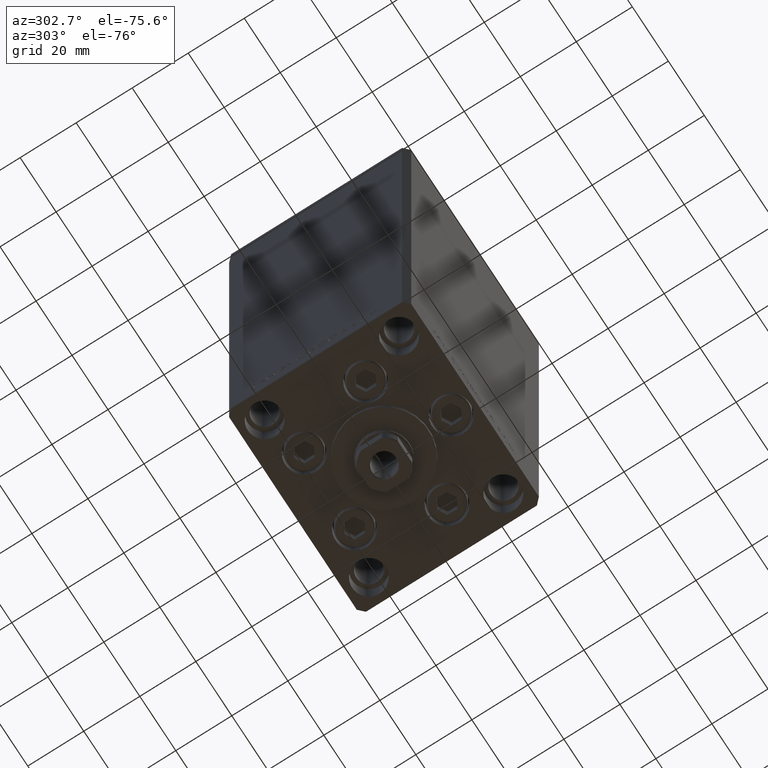
[diagram: clean part render]
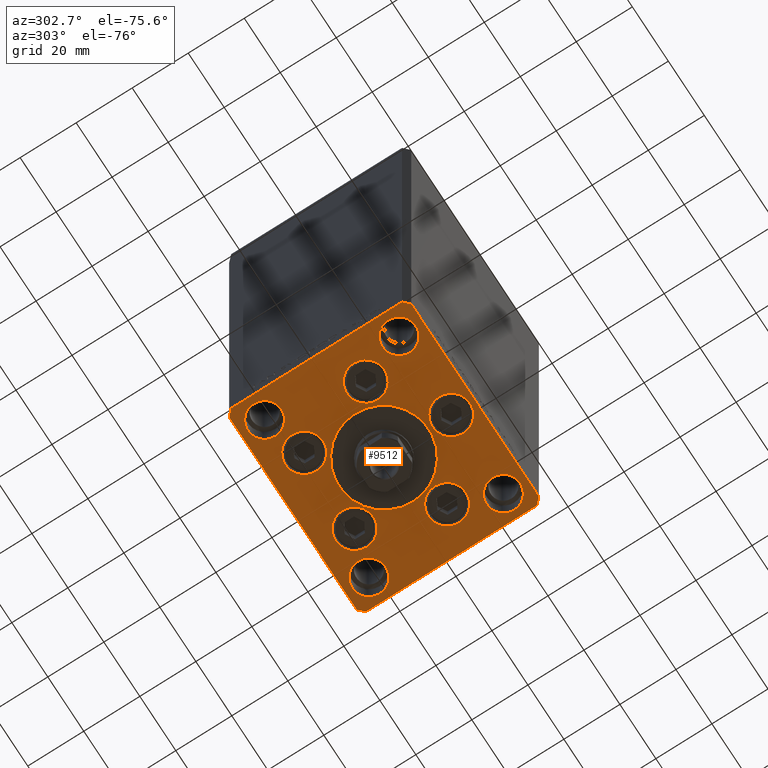
[diagram: same view with one face highlighted and labeled with its STEP entity id]
A machine part, auxiliary view. The second image highlights one B-rep face of the part: STEP entity #9512.
In plain terms, the highlighted planar face has unit normal (0, 0, -1).
Its self-contained STEP definition (entity closure, byte-faithful):
#71 = AXIS2_PLACEMENT_3D ( 'NONE', #30187, #732, #26215 ) ;
#279 = CIRCLE ( 'NONE', #18454, 6.000000000000001776 ) ;
#639 = EDGE_CURVE ( 'NONE', #46200, #8370, #29818, .T. ) ;
#732 = DIRECTION ( 'NONE',  ( 0.000000000000000000, 0.000000000000000000, 1.000000000000000000 ) ) ;
#765 = DIRECTION ( 'NONE',  ( 0.000000000000000000, 0.000000000000000000, 1.000000000000000000 ) ) ;
#799 = CARTESIAN_POINT ( 'NONE',  ( 35.00000000000000000, 24.00000000000000355, 0.000000000000000000 ) ) ;
#1046 = CARTESIAN_POINT ( 'NONE',  ( 35.50000000000001421, -32.49999999999992184, 0.000000000000000000 ) ) ;
#1102 = DIRECTION ( 'NONE',  ( 1.000000000000000000, 0.000000000000000000, 0.000000000000000000 ) ) ;
#1129 = DIRECTION ( 'NONE',  ( -1.000000000000000000, -1.954618001100627573E-16, 0.000000000000000000 ) ) ;
#1557 = DIRECTION ( 'NONE',  ( 1.000000000000000000, 0.000000000000000000, 0.000000000000000000 ) ) ;
#1823 = ORIENTED_EDGE ( 'NONE', *, *, #6134, .F. ) ;
#2084 = DIRECTION ( 'NONE',  ( 1.000000000000000000, 0.000000000000000000, 0.000000000000000000 ) ) ;
#2264 = CARTESIAN_POINT ( 'NONE',  ( -37.50000000000000000, -30.50000000000004263, 0.000000000000000000 ) ) ;
#2553 = VERTEX_POINT ( 'NONE', #21101 ) ;
#2595 = CIRCLE ( 'NONE', #48417, 5.999999999999998224 ) ;
#2602 = DIRECTION ( 'NONE',  ( 2.275047181608926165E-16, -1.000000000000000000, 0.000000000000000000 ) ) ;
#2688 = VERTEX_POINT ( 'NONE', #41387 ) ;
#3033 = DIRECTION ( 'NONE',  ( 0.000000000000000000, 0.000000000000000000, 1.000000000000000000 ) ) ;
#3148 = EDGE_CURVE ( 'NONE', #8370, #46200, #33835, .T. ) ;
#3176 = DIRECTION ( 'NONE',  ( 0.000000000000000000, 0.000000000000000000, 1.000000000000000000 ) ) ;
#3271 = CIRCLE ( 'NONE', #9581, 6.749999999999997335 ) ;
#3459 = CARTESIAN_POINT ( 'NONE',  ( 29.00000000000000000, 24.00000000000000355, 0.000000000000000000 ) ) ;
#3780 = ORIENTED_EDGE ( 'NONE', *, *, #41193, .T. ) ;
#3929 = CARTESIAN_POINT ( 'NONE',  ( 6.750000000001552536, -24.00000000000001066, 0.000000000000000000 ) ) ;
#4220 = EDGE_LOOP ( 'NONE', ( #14448, #14360 ) ) ;
#4254 = EDGE_CURVE ( 'NONE', #15693, #34137, #14562, .T. ) ;
#4322 = CARTESIAN_POINT ( 'NONE',  ( -13.99106857963324124, 19.50000000000000000, 0.000000000000000000 ) ) ;
#4583 = VERTEX_POINT ( 'NONE', #33778 ) ;
#4591 = VERTEX_POINT ( 'NONE', #37262 ) ;
#4633 = CIRCLE ( 'NONE', #29915, 6.000000000000001776 ) ;
#4725 = DIRECTION ( 'NONE',  ( 1.000000000000000000, 0.000000000000000000, 0.000000000000000000 ) ) ;
#5089 = LINE ( 'NONE', #11332, #16808 ) ;
#5221 = FACE_BOUND ( 'NONE', #17050, .T. ) ;
#5228 = EDGE_LOOP ( 'NONE', ( #41937, #17211 ) ) ;
#5265 = EDGE_CURVE ( 'NONE', #44348, #40256, #22695, .T. ) ;
#5304 = DIRECTION ( 'NONE',  ( 0.000000000000000000, 0.000000000000000000, 1.000000000000000000 ) ) ;
#5329 = DIRECTION ( 'NONE',  ( 1.000000000000000000, 0.000000000000000000, 0.000000000000000000 ) ) ;
#5424 = CARTESIAN_POINT ( 'NONE',  ( -37.50000000000000000, -30.50000000000004263, 0.000000000000000000 ) ) ;
#5470 = CIRCLE ( 'NONE', #26008, 6.000000000000001776 ) ;
#5471 = ORIENTED_EDGE ( 'NONE', *, *, #46162, .F. ) ;
#5570 = LINE ( 'NONE', #35761, #41992 ) ;
#5957 = FACE_BOUND ( 'NONE', #36043, .T. ) ;
#6121 = AXIS2_PLACEMENT_3D ( 'NONE', #3459, #45991, #26672 ) ;
#6134 = EDGE_CURVE ( 'NONE', #4583, #31196, #5470, .T. ) ;
#6322 = CARTESIAN_POINT ( 'NONE',  ( 20.74106857963323947, 19.50000000000000000, 0.000000000000000000 ) ) ;
#6435 = CARTESIAN_POINT ( 'NONE',  ( 37.50000000000000711, 30.50000000000001421, 0.000000000000000000 ) ) ;
#6536 = LINE ( 'NONE', #28060, #35041 ) ;
#6731 = ORIENTED_EDGE ( 'NONE', *, *, #22040, .T. ) ;
#6938 = VERTEX_POINT ( 'NONE', #27923 ) ;
#7111 = EDGE_CURVE ( 'NONE', #35011, #22943, #15531, .T. ) ;
#7166 = CIRCLE ( 'NONE', #16665, 16.00000000000000355 ) ;
#7625 = AXIS2_PLACEMENT_3D ( 'NONE', #17272, #32368, #28656 ) ;
#7696 = AXIS2_PLACEMENT_3D ( 'NONE', #27595, #47379, #5329 ) ;
#7773 = VERTEX_POINT ( 'NONE', #3929 ) ;
#7854 = DIRECTION ( 'NONE',  ( -0.7071067811865524577, -0.7071067811865426878, 0.000000000000000000 ) ) ;
#8370 = VERTEX_POINT ( 'NONE', #10685 ) ;
#8415 = DIRECTION ( 'NONE',  ( 0.000000000000000000, 0.000000000000000000, 1.000000000000000000 ) ) ;
#8934 = FACE_BOUND ( 'NONE', #5228, .T. ) ;
#9021 = EDGE_CURVE ( 'NONE', #40256, #44348, #34546, .T. ) ;
#9258 = AXIS2_PLACEMENT_3D ( 'NONE', #26567, #15446, #18658 ) ;
#9357 = ORIENTED_EDGE ( 'NONE', *, *, #4254, .T. ) ;
#9401 = CARTESIAN_POINT ( 'NONE',  ( 0.000000000000000000, -24.00000000000001066, 0.000000000000000000 ) ) ;
#9512 = ADVANCED_FACE ( 'NONE', ( #8934, #24010, #39116, #28466, #24746, #39855, #5221, #20291, #5957, #35404, #29196 ), #40093, .T. ) ;
#9552 = AXIS2_PLACEMENT_3D ( 'NONE', #31732, #25018, #1557 ) ;
#9581 = AXIS2_PLACEMENT_3D ( 'NONE', #23322, #22835, #41897 ) ;
#9940 = EDGE_CURVE ( 'NONE', #10461, #16845, #36580, .T. ) ;
#10086 = VERTEX_POINT ( 'NONE', #13249 ) ;
#10418 = EDGE_CURVE ( 'NONE', #16393, #23292, #21153, .T. ) ;
#10461 = VERTEX_POINT ( 'NONE', #1046 ) ;
#10518 = VERTEX_POINT ( 'NONE', #2264 ) ;
#10685 = CARTESIAN_POINT ( 'NONE',  ( -15.87741699796953476, -8.000000000000000000, 0.000000000000000000 ) ) ;
#11332 = CARTESIAN_POINT ( 'NONE',  ( 35.50000000000000000, 32.49999999999999289, 0.000000000000000000 ) ) ;
#11509 = EDGE_CURVE ( 'NONE', #16845, #4591, #45143, .T. ) ;
#12389 = DIRECTION ( 'NONE',  ( 1.000000000000000000, 0.000000000000000000, 0.000000000000000000 ) ) ;
#12547 = CARTESIAN_POINT ( 'NONE',  ( 29.37741699796954364, -8.000000000000000000, 0.000000000000000000 ) ) ;
#12996 = CARTESIAN_POINT ( 'NONE',  ( -29.00000000000000000, 24.00000000000000711, 0.000000000000000000 ) ) ;
#13249 = CARTESIAN_POINT ( 'NONE',  ( -6.750000000001552536, -24.00000000000001066, 0.000000000000000000 ) ) ;
#14360 = ORIENTED_EDGE ( 'NONE', *, *, #14470, .F. ) ;
#14448 = ORIENTED_EDGE ( 'NONE', *, *, #42306, .F. ) ;
#14470 = EDGE_CURVE ( 'NONE', #47429, #40371, #25136, .T. ) ;
#14562 = LINE ( 'NONE', #18503, #21079 ) ;
#15446 = DIRECTION ( 'NONE',  ( 0.000000000000000000, 0.000000000000000000, 1.000000000000000000 ) ) ;
#15531 = CIRCLE ( 'NONE', #7625, 6.750000000000009770 ) ;
#15693 = VERTEX_POINT ( 'NONE', #29471 ) ;
#16304 = DIRECTION ( 'NONE',  ( 0.7071067811865512365, -0.7071067811865439090, 0.000000000000000000 ) ) ;
#16364 = EDGE_CURVE ( 'NONE', #31196, #4583, #4633, .T. ) ;
#16393 = VERTEX_POINT ( 'NONE', #44628 ) ;
#16665 = AXIS2_PLACEMENT_3D ( 'NONE', #22200, #3176, #44503 ) ;
#16803 = DIRECTION ( 'NONE',  ( 1.000000000000000000, 0.000000000000000000, 0.000000000000000000 ) ) ;
#16808 = VECTOR ( 'NONE', #1129, 1000.000000000000000 ) ;
#16845 = VERTEX_POINT ( 'NONE', #22756 ) ;
#16857 = ORIENTED_EDGE ( 'NONE', *, *, #17922, .F. ) ;
#17050 = EDGE_LOOP ( 'NONE', ( #40456, #26487 ) ) ;
#17211 = ORIENTED_EDGE ( 'NONE', *, *, #10418, .F. ) ;
#17272 = CARTESIAN_POINT ( 'NONE',  ( 22.62741699796953299, -8.000000000000000000, 0.000000000000000000 ) ) ;
#17337 = ORIENTED_EDGE ( 'NONE', *, *, #26086, .F. ) ;
#17368 = CARTESIAN_POINT ( 'NONE',  ( -23.00000000000000000, -23.99999999999999645, 0.000000000000000000 ) ) ;
#17661 = CARTESIAN_POINT ( 'NONE',  ( -23.00000000000000000, 24.00000000000000711, 0.000000000000000000 ) ) ;
#17662 = CARTESIAN_POINT ( 'NONE',  ( 23.00000000000000711, -23.99999999999999645, 0.000000000000000000 ) ) ;
#17806 = CARTESIAN_POINT ( 'NONE',  ( 0.000000000000000000, 0.000000000000000000, 0.000000000000000000 ) ) ;
#17922 = EDGE_CURVE ( 'NONE', #37774, #41689, #21298, .T. ) ;
#18299 = DIRECTION ( 'NONE',  ( -0.000000000000000000, 0.000000000000000000, 1.000000000000000000 ) ) ;
#18403 = CARTESIAN_POINT ( 'NONE',  ( 15.87741699796952410, -8.000000000000000000, 0.000000000000000000 ) ) ;
#18436 = ORIENTED_EDGE ( 'NONE', *, *, #29182, .F. ) ;
#18454 = AXIS2_PLACEMENT_3D ( 'NONE', #26046, #41154, #25792 ) ;
#18503 = CARTESIAN_POINT ( 'NONE',  ( -35.50000000000000711, 32.49999999999997868, 0.000000000000000000 ) ) ;
#18658 = DIRECTION ( 'NONE',  ( 1.000000000000000000, 0.000000000000000000, 0.000000000000000000 ) ) ;
#18673 = ORIENTED_EDGE ( 'NONE', *, *, #44326, .F. ) ;
#18891 = DIRECTION ( 'NONE',  ( 0.000000000000000000, 1.000000000000000000, 0.000000000000000000 ) ) ;
#19017 = CIRCLE ( 'NONE', #71, 6.750000000001552536 ) ;
#19920 = EDGE_LOOP ( 'NONE', ( #24723, #39465, #45131, #33161, #3780, #38147, #9357, #6731 ) ) ;
#20291 = FACE_BOUND ( 'NONE', #33400, .T. ) ;
#20489 = VECTOR ( 'NONE', #37094, 1000.000000000000000 ) ;
#20501 = CARTESIAN_POINT ( 'NONE',  ( -22.62741699796953299, -8.000000000000000000, 0.000000000000000000 ) ) ;
#21066 = CARTESIAN_POINT ( 'NONE',  ( 23.00000000000000000, 24.00000000000000355, 0.000000000000000000 ) ) ;
#21079 = VECTOR ( 'NONE', #7854, 1000.000000000000000 ) ;
#21101 = CARTESIAN_POINT ( 'NONE',  ( 7.241068579633242130, 19.50000000000000000, 0.000000000000000000 ) ) ;
#21153 = CIRCLE ( 'NONE', #36985, 16.00000000000000355 ) ;
#21182 = EDGE_CURVE ( 'NONE', #10086, #7773, #19017, .T. ) ;
#21298 = CIRCLE ( 'NONE', #47367, 5.999999999999998224 ) ;
#21471 = EDGE_CURVE ( 'NONE', #23292, #16393, #7166, .T. ) ;
#22040 = EDGE_CURVE ( 'NONE', #34137, #10518, #5570, .T. ) ;
#22200 = CARTESIAN_POINT ( 'NONE',  ( 0.000000000000000000, -6.938893903907228378E-15, 0.000000000000000000 ) ) ;
#22595 = CARTESIAN_POINT ( 'NONE',  ( 37.50000000000000711, -30.49999999999992895, 0.000000000000000000 ) ) ;
#22695 = CIRCLE ( 'NONE', #7696, 6.000000000000001776 ) ;
#22756 = CARTESIAN_POINT ( 'NONE',  ( 37.50000000000000711, -30.49999999999992895, 0.000000000000000000 ) ) ;
#22787 = CARTESIAN_POINT ( 'NONE',  ( -13.99106857963324124, 19.50000000000000000, 0.000000000000000000 ) ) ;
#22835 = DIRECTION ( 'NONE',  ( 0.000000000000000000, 0.000000000000000000, 1.000000000000000000 ) ) ;
#22943 = VERTEX_POINT ( 'NONE', #18403 ) ;
#22946 = ORIENTED_EDGE ( 'NONE', *, *, #639, .F. ) ;
#23237 = EDGE_LOOP ( 'NONE', ( #31228, #44013 ) ) ;
#23259 = CARTESIAN_POINT ( 'NONE',  ( -29.00000000000000000, -23.99999999999999645, 0.000000000000000000 ) ) ;
#23292 = VERTEX_POINT ( 'NONE', #35889 ) ;
#23322 = CARTESIAN_POINT ( 'NONE',  ( 13.99106857963324124, 19.50000000000000000, 0.000000000000000000 ) ) ;
#23535 = EDGE_LOOP ( 'NONE', ( #5471, #18673 ) ) ;
#23696 = DIRECTION ( 'NONE',  ( 1.000000000000000000, 0.000000000000000000, 0.000000000000000000 ) ) ;
#24010 = FACE_BOUND ( 'NONE', #4220, .T. ) ;
#24447 = CIRCLE ( 'NONE', #34703, 6.750000000001552536 ) ;
#24723 = ORIENTED_EDGE ( 'NONE', *, *, #32646, .T. ) ;
#24746 = FACE_BOUND ( 'NONE', #32684, .T. ) ;
#25018 = DIRECTION ( 'NONE',  ( 0.000000000000000000, 0.000000000000000000, 1.000000000000000000 ) ) ;
#25136 = CIRCLE ( 'NONE', #28284, 6.750000000000000000 ) ;
#25667 = EDGE_CURVE ( 'NONE', #6938, #15693, #5089, .T. ) ;
#25792 = DIRECTION ( 'NONE',  ( 1.000000000000000000, 0.000000000000000000, 0.000000000000000000 ) ) ;
#25915 = AXIS2_PLACEMENT_3D ( 'NONE', #20501, #31900, #16803 ) ;
#26008 = AXIS2_PLACEMENT_3D ( 'NONE', #12996, #46905, #28088 ) ;
#26046 = CARTESIAN_POINT ( 'NONE',  ( -29.00000000000000000, -23.99999999999999645, 0.000000000000000000 ) ) ;
#26086 = EDGE_CURVE ( 'NONE', #48384, #28182, #34184, .T. ) ;
#26215 = DIRECTION ( 'NONE',  ( 1.000000000000000000, 0.000000000000000000, 0.000000000000000000 ) ) ;
#26487 = ORIENTED_EDGE ( 'NONE', *, *, #5265, .F. ) ;
#26567 = CARTESIAN_POINT ( 'NONE',  ( -22.62741699796953299, -8.000000000000000000, 0.000000000000000000 ) ) ;
#26672 = DIRECTION ( 'NONE',  ( 1.000000000000000000, 0.000000000000000000, 0.000000000000000000 ) ) ;
#26842 = CIRCLE ( 'NONE', #32375, 6.750000000000000000 ) ;
#27427 = AXIS2_PLACEMENT_3D ( 'NONE', #17806, #18299, #48720 ) ;
#27595 = CARTESIAN_POINT ( 'NONE',  ( 29.00000000000000000, 24.00000000000000355, 0.000000000000000000 ) ) ;
#27701 = DIRECTION ( 'NONE',  ( 0.000000000000000000, 0.000000000000000000, 1.000000000000000000 ) ) ;
#27923 = CARTESIAN_POINT ( 'NONE',  ( 35.50000000000000000, 32.49999999999999289, 0.000000000000000000 ) ) ;
#28060 = CARTESIAN_POINT ( 'NONE',  ( -35.50000000000001421, -32.50000000000000711, 0.000000000000000000 ) ) ;
#28088 = DIRECTION ( 'NONE',  ( 1.000000000000000000, 0.000000000000000000, 0.000000000000000000 ) ) ;
#28182 = VERTEX_POINT ( 'NONE', #17368 ) ;
#28284 = AXIS2_PLACEMENT_3D ( 'NONE', #4322, #38700, #1102 ) ;
#28466 = FACE_BOUND ( 'NONE', #23237, .T. ) ;
#28656 = DIRECTION ( 'NONE',  ( 1.000000000000000000, 0.000000000000000000, 0.000000000000000000 ) ) ;
#29182 = EDGE_CURVE ( 'NONE', #41689, #37774, #2595, .T. ) ;
#29196 = FACE_OUTER_BOUND ( 'NONE', #19920, .T. ) ;
#29291 = CIRCLE ( 'NONE', #9552, 6.749999999999997335 ) ;
#29471 = CARTESIAN_POINT ( 'NONE',  ( -35.50000000000000711, 32.49999999999997868, 0.000000000000000000 ) ) ;
#29818 = CIRCLE ( 'NONE', #9258, 6.749999999999999112 ) ;
#29915 = AXIS2_PLACEMENT_3D ( 'NONE', #31536, #5304, #2084 ) ;
#29989 = DIRECTION ( 'NONE',  ( 1.000000000000000000, 0.000000000000000000, 0.000000000000000000 ) ) ;
#30187 = CARTESIAN_POINT ( 'NONE',  ( 0.000000000000000000, -24.00000000000001066, 0.000000000000000000 ) ) ;
#30280 = CARTESIAN_POINT ( 'NONE',  ( -29.37741699796953654, -8.000000000000000000, 0.000000000000000000 ) ) ;
#30659 = VECTOR ( 'NONE', #40763, 1000.000000000000000 ) ;
#30975 = DIRECTION ( 'NONE',  ( 0.000000000000000000, 0.000000000000000000, 1.000000000000000000 ) ) ;
#31196 = VERTEX_POINT ( 'NONE', #17661 ) ;
#31228 = ORIENTED_EDGE ( 'NONE', *, *, #7111, .F. ) ;
#31235 = EDGE_CURVE ( 'NONE', #2688, #10461, #6536, .T. ) ;
#31349 = EDGE_CURVE ( 'NONE', #28182, #48384, #279, .T. ) ;
#31427 = DIRECTION ( 'NONE',  ( 0.000000000000000000, 0.000000000000000000, 1.000000000000000000 ) ) ;
#31536 = CARTESIAN_POINT ( 'NONE',  ( -29.00000000000000000, 24.00000000000000711, 0.000000000000000000 ) ) ;
#31676 = DIRECTION ( 'NONE',  ( 1.000000000000000000, 0.000000000000000000, 0.000000000000000000 ) ) ;
#31732 = CARTESIAN_POINT ( 'NONE',  ( 13.99106857963324124, 19.50000000000000000, 0.000000000000000000 ) ) ;
#31871 = DIRECTION ( 'NONE',  ( 0.000000000000000000, 0.000000000000000000, 1.000000000000000000 ) ) ;
#31900 = DIRECTION ( 'NONE',  ( 0.000000000000000000, 0.000000000000000000, 1.000000000000000000 ) ) ;
#31940 = ORIENTED_EDGE ( 'NONE', *, *, #16364, .F. ) ;
#31993 = CARTESIAN_POINT ( 'NONE',  ( -35.00000000000000000, -23.99999999999999645, 0.000000000000000000 ) ) ;
#32368 = DIRECTION ( 'NONE',  ( 0.000000000000000000, 0.000000000000000000, 1.000000000000000000 ) ) ;
#32375 = AXIS2_PLACEMENT_3D ( 'NONE', #22787, #3033, #29989 ) ;
#32646 = EDGE_CURVE ( 'NONE', #10518, #2688, #46741, .T. ) ;
#32684 = EDGE_LOOP ( 'NONE', ( #45753, #33535 ) ) ;
#33093 = CARTESIAN_POINT ( 'NONE',  ( 35.50000000000001421, -32.49999999999992184, 0.000000000000000000 ) ) ;
#33161 = ORIENTED_EDGE ( 'NONE', *, *, #11509, .T. ) ;
#33400 = EDGE_LOOP ( 'NONE', ( #31940, #1823 ) ) ;
#33535 = ORIENTED_EDGE ( 'NONE', *, *, #21182, .F. ) ;
#33778 = CARTESIAN_POINT ( 'NONE',  ( -35.00000000000000000, 24.00000000000000711, 0.000000000000000000 ) ) ;
#33835 = CIRCLE ( 'NONE', #25915, 6.749999999999999112 ) ;
#34137 = VERTEX_POINT ( 'NONE', #45665 ) ;
#34184 = CIRCLE ( 'NONE', #47652, 6.000000000000001776 ) ;
#34241 = CARTESIAN_POINT ( 'NONE',  ( -20.74106857963324302, 19.50000000000000000, 0.000000000000000000 ) ) ;
#34546 = CIRCLE ( 'NONE', #6121, 6.000000000000001776 ) ;
#34703 = AXIS2_PLACEMENT_3D ( 'NONE', #9401, #31427, #4725 ) ;
#34896 = DIRECTION ( 'NONE',  ( 1.000000000000000000, 0.000000000000000000, 0.000000000000000000 ) ) ;
#34909 = CARTESIAN_POINT ( 'NONE',  ( 29.00000000000000355, -23.99999999999999645, 0.000000000000000000 ) ) ;
#35011 = VERTEX_POINT ( 'NONE', #12547 ) ;
#35041 = VECTOR ( 'NONE', #43661, 1000.000000000000000 ) ;
#35404 = FACE_BOUND ( 'NONE', #43159, .T. ) ;
#35761 = CARTESIAN_POINT ( 'NONE',  ( -37.50000000000001421, 30.50000000000000000, 0.000000000000000000 ) ) ;
#35889 = CARTESIAN_POINT ( 'NONE',  ( -16.00000000000000355, -6.938893903907228378E-15, 0.000000000000000000 ) ) ;
#36043 = EDGE_LOOP ( 'NONE', ( #39986, #17337 ) ) ;
#36375 = LINE ( 'NONE', #6435, #20489 ) ;
#36580 = LINE ( 'NONE', #33093, #30659 ) ;
#36985 = AXIS2_PLACEMENT_3D ( 'NONE', #42117, #30975, #12389 ) ;
#37072 = AXIS2_PLACEMENT_3D ( 'NONE', #46711, #31871, #23696 ) ;
#37094 = DIRECTION ( 'NONE',  ( -0.7071067811865524577, 0.7071067811865426878, 0.000000000000000000 ) ) ;
#37262 = CARTESIAN_POINT ( 'NONE',  ( 37.50000000000000711, 30.50000000000001421, 0.000000000000000000 ) ) ;
#37287 = CARTESIAN_POINT ( 'NONE',  ( 35.00000000000000000, -23.99999999999999645, 0.000000000000000000 ) ) ;
#37774 = VERTEX_POINT ( 'NONE', #17662 ) ;
#38147 = ORIENTED_EDGE ( 'NONE', *, *, #25667, .T. ) ;
#38357 = DIRECTION ( 'NONE',  ( 1.000000000000000000, 0.000000000000000000, 0.000000000000000000 ) ) ;
#38700 = DIRECTION ( 'NONE',  ( 0.000000000000000000, 0.000000000000000000, 1.000000000000000000 ) ) ;
#39116 = FACE_BOUND ( 'NONE', #23535, .T. ) ;
#39465 = ORIENTED_EDGE ( 'NONE', *, *, #31235, .T. ) ;
#39855 = FACE_BOUND ( 'NONE', #40502, .T. ) ;
#39986 = ORIENTED_EDGE ( 'NONE', *, *, #31349, .F. ) ;
#40093 = PLANE ( 'NONE',  #27427 ) ;
#40256 = VERTEX_POINT ( 'NONE', #799 ) ;
#40371 = VERTEX_POINT ( 'NONE', #41290 ) ;
#40456 = ORIENTED_EDGE ( 'NONE', *, *, #9021, .F. ) ;
#40502 = EDGE_LOOP ( 'NONE', ( #45136, #22946 ) ) ;
#40763 = DIRECTION ( 'NONE',  ( 0.7071067811865463515, 0.7071067811865487940, 0.000000000000000000 ) ) ;
#41081 = EDGE_CURVE ( 'NONE', #7773, #10086, #24447, .T. ) ;
#41154 = DIRECTION ( 'NONE',  ( 0.000000000000000000, 0.000000000000000000, 1.000000000000000000 ) ) ;
#41193 = EDGE_CURVE ( 'NONE', #4591, #6938, #36375, .T. ) ;
#41290 = CARTESIAN_POINT ( 'NONE',  ( -7.241068579633241242, 19.50000000000000000, 0.000000000000000000 ) ) ;
#41387 = CARTESIAN_POINT ( 'NONE',  ( -35.50000000000001421, -32.50000000000000711, 0.000000000000000000 ) ) ;
#41439 = EDGE_CURVE ( 'NONE', #22943, #35011, #44989, .T. ) ;
#41689 = VERTEX_POINT ( 'NONE', #37287 ) ;
#41897 = DIRECTION ( 'NONE',  ( 1.000000000000000000, 0.000000000000000000, 0.000000000000000000 ) ) ;
#41937 = ORIENTED_EDGE ( 'NONE', *, *, #21471, .F. ) ;
#41992 = VECTOR ( 'NONE', #2602, 1000.000000000000000 ) ;
#42117 = CARTESIAN_POINT ( 'NONE',  ( 0.000000000000000000, -6.938893903907228378E-15, 0.000000000000000000 ) ) ;
#42306 = EDGE_CURVE ( 'NONE', #40371, #47429, #26842, .T. ) ;
#42794 = VERTEX_POINT ( 'NONE', #6322 ) ;
#43159 = EDGE_LOOP ( 'NONE', ( #18436, #16857 ) ) ;
#43295 = CARTESIAN_POINT ( 'NONE',  ( 29.00000000000000355, -23.99999999999999645, 0.000000000000000000 ) ) ;
#43355 = VECTOR ( 'NONE', #18891, 1000.000000000000000 ) ;
#43661 = DIRECTION ( 'NONE',  ( 1.000000000000000000, 1.172770800660376149E-15, 0.000000000000000000 ) ) ;
#44013 = ORIENTED_EDGE ( 'NONE', *, *, #41439, .F. ) ;
#44326 = EDGE_CURVE ( 'NONE', #2553, #42794, #29291, .T. ) ;
#44348 = VERTEX_POINT ( 'NONE', #21066 ) ;
#44503 = DIRECTION ( 'NONE',  ( 1.000000000000000000, 0.000000000000000000, 0.000000000000000000 ) ) ;
#44628 = CARTESIAN_POINT ( 'NONE',  ( 16.00000000000000355, -4.979459025271462852E-15, 0.000000000000000000 ) ) ;
#44989 = CIRCLE ( 'NONE', #37072, 6.750000000000009770 ) ;
#45131 = ORIENTED_EDGE ( 'NONE', *, *, #9940, .T. ) ;
#45136 = ORIENTED_EDGE ( 'NONE', *, *, #3148, .F. ) ;
#45143 = LINE ( 'NONE', #22595, #43355 ) ;
#45665 = CARTESIAN_POINT ( 'NONE',  ( -37.50000000000001421, 30.50000000000000000, 0.000000000000000000 ) ) ;
#45753 = ORIENTED_EDGE ( 'NONE', *, *, #41081, .F. ) ;
#45991 = DIRECTION ( 'NONE',  ( 0.000000000000000000, 0.000000000000000000, 1.000000000000000000 ) ) ;
#46162 = EDGE_CURVE ( 'NONE', #42794, #2553, #3271, .T. ) ;
#46200 = VERTEX_POINT ( 'NONE', #30280 ) ;
#46711 = CARTESIAN_POINT ( 'NONE',  ( 22.62741699796953299, -8.000000000000000000, 0.000000000000000000 ) ) ;
#46741 = LINE ( 'NONE', #5424, #47716 ) ;
#46905 = DIRECTION ( 'NONE',  ( 0.000000000000000000, 0.000000000000000000, 1.000000000000000000 ) ) ;
#47367 = AXIS2_PLACEMENT_3D ( 'NONE', #43295, #27701, #34896 ) ;
#47379 = DIRECTION ( 'NONE',  ( 0.000000000000000000, 0.000000000000000000, 1.000000000000000000 ) ) ;
#47429 = VERTEX_POINT ( 'NONE', #34241 ) ;
#47652 = AXIS2_PLACEMENT_3D ( 'NONE', #23259, #8415, #38357 ) ;
#47716 = VECTOR ( 'NONE', #16304, 1000.000000000000000 ) ;
#48384 = VERTEX_POINT ( 'NONE', #31993 ) ;
#48417 = AXIS2_PLACEMENT_3D ( 'NONE', #34909, #765, #31676 ) ;
#48720 = DIRECTION ( 'NONE',  ( 1.000000000000000000, 0.000000000000000000, 0.000000000000000000 ) ) ;